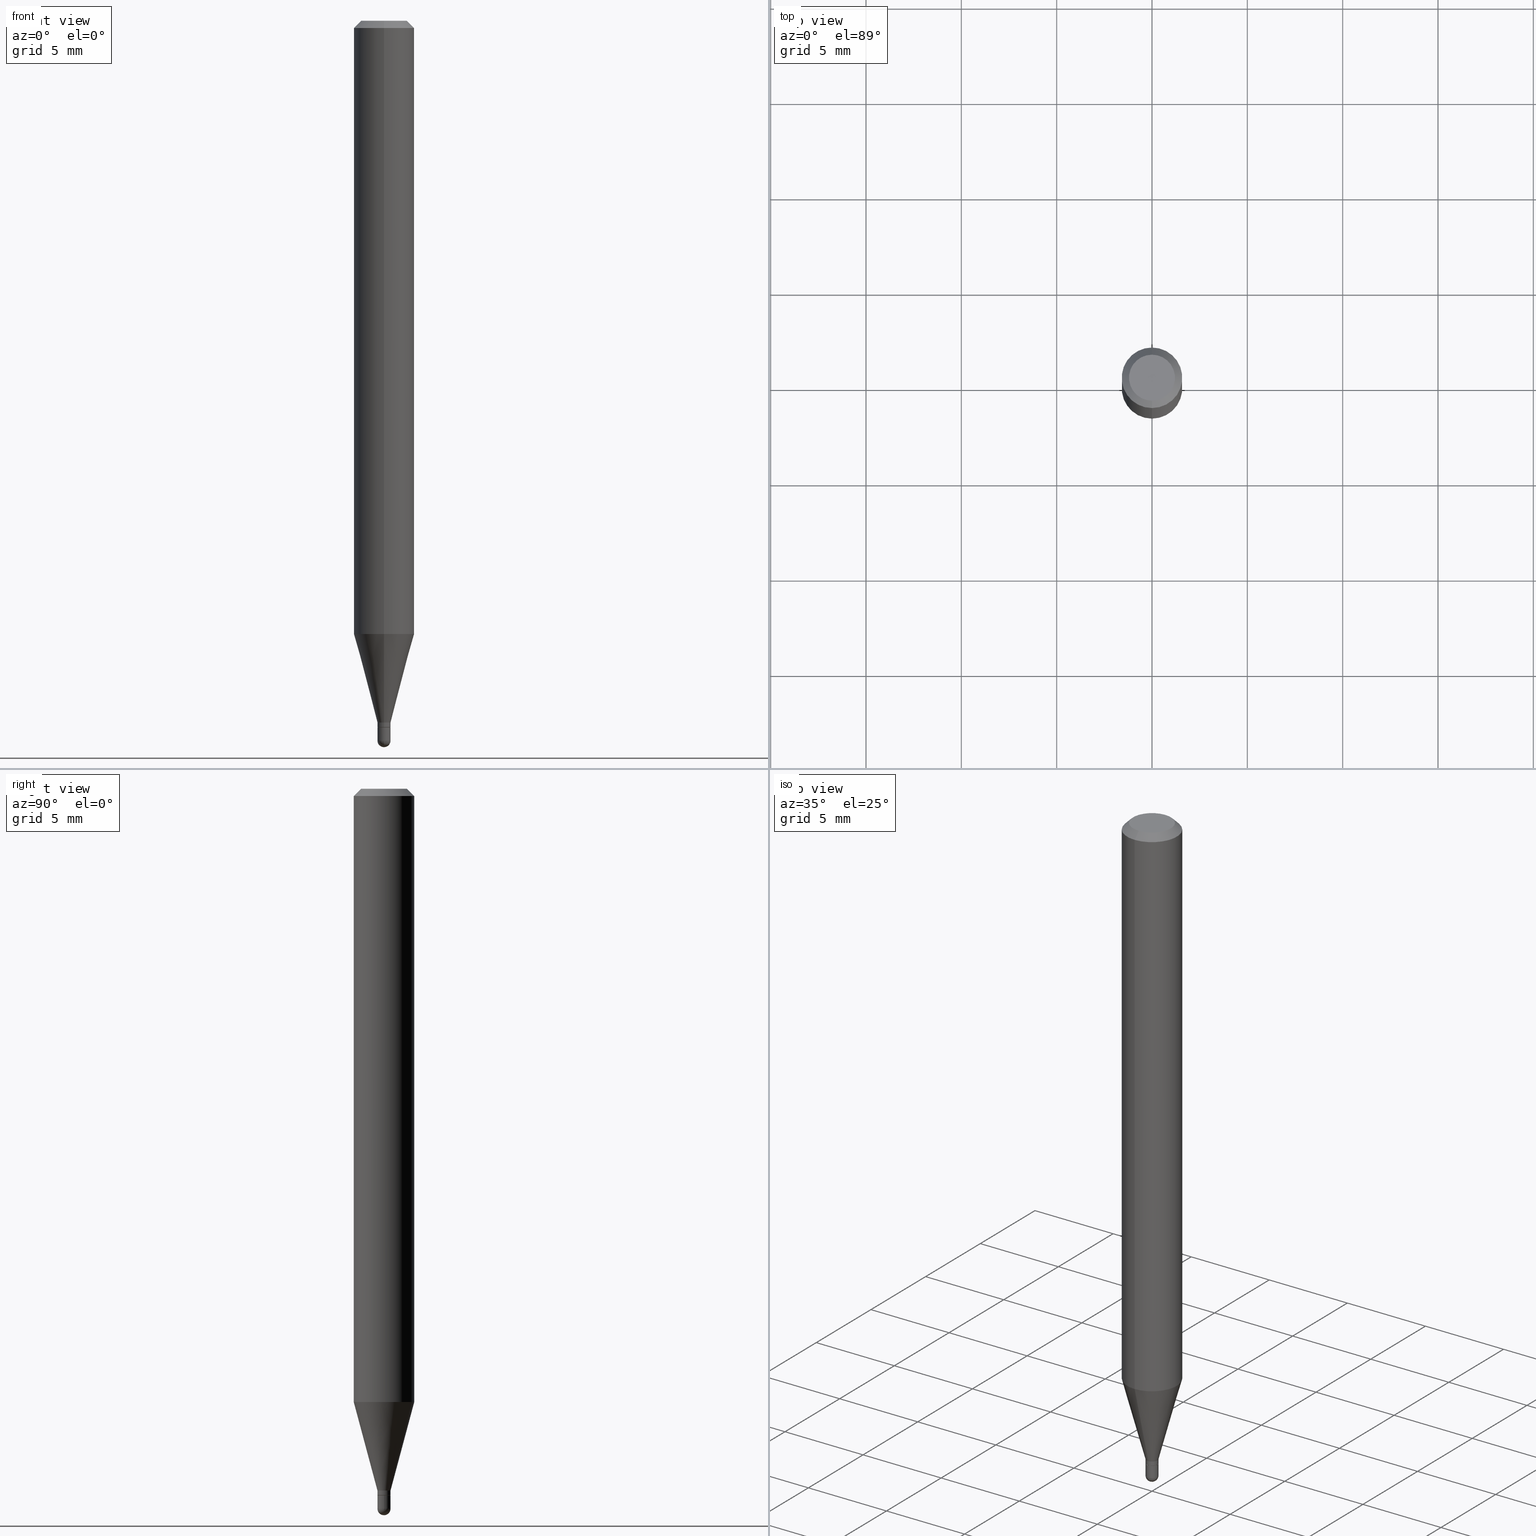
[diagram: canonical four-view strip — front | top / right | iso, engineering-drawing reading convention]
A machine part, canonical four-view strip (front | top / right | iso — engineering-drawing reading convention). The complete STEP part file that produces these views, byte-faithful:
ISO-10303-21;
HEADER;
FILE_DESCRIPTION (( 'STEP AP203' ),
    '1' );
FILE_NAME ('00762.STEP',
    '2024-03-07T18:14:38',
    ( '' ),
    ( '' ),
    'SwSTEP 2.0',
    'SolidWorks 2023',
    '' );
FILE_SCHEMA (( 'CONFIG_CONTROL_DESIGN' ));
ENDSEC;

DATA;
#1 = DIRECTION ( 'NONE',  ( -2.445469396316461036E-29, 3.491480493741500613E-15, 1.000000000000000000 ) ) ;
#2 = CALENDAR_DATE ( 2024, 7, 3 ) ;
#3 = VECTOR ( 'NONE', #293, 39.37007874015748143 ) ;
#4 = LOCAL_TIME ( 13, 14, 38.00000000000000000, #40 ) ;
#5 = DIRECTION ( 'NONE',  ( 1.000000000000000000, -6.982962677686266711E-15, 4.876176775795935232E-29 ) ) ;
#6 = DIRECTION ( 'NONE',  ( -2.445469396316460756E-29, 3.491480493741500613E-15, 1.000000000000000000 ) ) ;
#7 = DIRECTION ( 'NONE',  ( 1.000000000000000000, -6.982962677686297476E-15, 0.000000000000000000 ) ) ;
#8 = CALENDAR_DATE ( 2024, 7, 3 ) ;
#9 = VERTEX_POINT ( 'NONE', #373 ) ;
#10 = CARTESIAN_POINT ( 'NONE',  ( -3.773273898774340269E-16, -0.04749999999999999362, 1.569849637185620268E-16 ) ) ;
#11 = ORIENTED_EDGE ( 'NONE', *, *, #161, .T. ) ;
#12 = FACE_OUTER_BOUND ( 'NONE', #183, .T. ) ;
#13 = MANIFOLD_SOLID_BREP ( 'Body-Move/Copy2[2]', #316 ) ;
#14 = VERTEX_POINT ( 'NONE', #265 ) ;
#15 = DIRECTION ( 'NONE',  ( -2.445469396316461036E-29, 3.491480493741500613E-15, 1.000000000000000000 ) ) ;
#16 = AXIS2_PLACEMENT_3D ( 'NONE', #498, #458, #19 ) ;
#17 = PRODUCT_DEFINITION_SHAPE ( 'NONE', 'NONE',  #154 ) ;
#18 = VERTEX_POINT ( 'NONE', #417 ) ;
#19 = DIRECTION ( 'NONE',  ( -6.982962677686265922E-15, -1.000000000000000000, 0.000000000000000000 ) ) ;
#20 = ORIENTED_EDGE ( 'NONE', *, *, #447, .F. ) ;
#21 = CARTESIAN_POINT ( 'NONE',  ( 3.668204094474693989E-31, -5.237220740612253655E-17, -0.01500000000000000812 ) ) ;
#22 = ORIENTED_EDGE ( 'NONE', *, *, #223, .T. ) ;
#23 = CYLINDRICAL_SURFACE ( 'NONE', #276, 0.01349999999999992525 ) ;
#24 = AXIS2_PLACEMENT_3D ( 'NONE', #268, #188, #345 ) ;
#25 = CARTESIAN_POINT ( 'NONE',  ( 2.700062395888710975E-16, 0.01349999999999486507, -1.449000000000000066 ) ) ;
#26 = FACE_OUTER_BOUND ( 'NONE', #476, .T. ) ;
#27 = ADVANCED_FACE ( 'NONE', ( #377 ), #263, .T. ) ;
#28 = EDGE_CURVE ( 'NONE', #413, #60, #348, .T. ) ;
#29 = DIRECTION ( 'NONE',  ( -2.445468806185136877E-29, 3.491481338843145188E-15, 1.000000000000000000 ) ) ;
#30 = AXIS2_PLACEMENT_3D ( 'NONE', #86, #297, #400 ) ;
#31 = AXIS2_PLACEMENT_3D ( 'NONE', #464, #278, #426 ) ;
#32 = EDGE_CURVE ( 'NONE', #315, #215, #500, .T. ) ;
#33 = CIRCLE ( 'NONE', #269, 0.01300000000000000114 ) ;
#34 = PERSON_AND_ORGANIZATION ( #425, #323 ) ;
#35 = PERSON_AND_ORGANIZATION ( #425, #323 ) ;
#36 = CARTESIAN_POINT ( 'NONE',  ( 0.000000000000000000, 0.000000000000000000, 0.000000000000000000 ) ) ;
#37 = APPROVAL ( #168, 'UNSPECIFIED' ) ;
#38 = FACE_OUTER_BOUND ( 'NONE', #502, .T. ) ;
#39 = DIRECTION ( 'NONE',  ( -2.445469396316461036E-29, 3.491480493741500613E-15, 1.000000000000000000 ) ) ;
#40 = COORDINATED_UNIVERSAL_TIME_OFFSET ( 5, 0, .BEHIND. ) ;
#41 = AXIS2_PLACEMENT_3D ( 'NONE', #267, #224, #67 ) ;
#42 = AXIS2_PLACEMENT_3D ( 'NONE', #445, #428, #211 ) ;
#43 = VERTEX_POINT ( 'NONE', #286 ) ;
#44 = LINE ( 'NONE', #160, #441 ) ;
#45 = EDGE_CURVE ( 'NONE', #337, #450, #437, .T. ) ;
#46 = PERSON_AND_ORGANIZATION ( #425, #323 ) ;
#47 = ORIENTED_EDGE ( 'NONE', *, *, #223, .F. ) ;
#48 = CARTESIAN_POINT ( 'NONE',  ( 3.567938988224114792E-29, -5.094071273372150151E-15, -1.459000000000000297 ) ) ;
#49 = DIRECTION ( 'NONE',  ( -6.982962677686265922E-15, -1.000000000000000000, 0.000000000000000000 ) ) ;
#50 = DIRECTION ( 'NONE',  ( -2.445469396316461036E-29, 3.491480493741500613E-15, 1.000000000000000000 ) ) ;
#51 = ORIENTED_EDGE ( 'NONE', *, *, #233, .F. ) ;
#52 = DIRECTION ( 'NONE',  ( -4.851104656540964275E-15, -0.7071067811865500152, -0.7071067811865450192 ) ) ;
#53 = DIRECTION ( 'NONE',  ( -6.982962677686266711E-15, -1.000000000000000000, 3.491480493741501007E-15 ) ) ;
#54 = ORIENTED_EDGE ( 'NONE', *, *, #396, .F. ) ;
#55 = EDGE_CURVE ( 'NONE', #18, #220, #412, .T. ) ;
#56 = ORIENTED_EDGE ( 'NONE', *, *, #408, .F. ) ;
#57 = FACE_OUTER_BOUND ( 'NONE', #99, .T. ) ;
#58 = CIRCLE ( 'NONE', #69, 0.06250000000000000000 ) ;
#59 = PRODUCT ( '00762', '00762', '', ( #117 ) ) ;
#60 = VERTEX_POINT ( 'NONE', #495 ) ;
#61 = CARTESIAN_POINT ( 'NONE',  ( 3.635189380394205421E-29, -5.190087010190336792E-15, -1.486500000000000155 ) ) ;
#62 = ORIENTED_EDGE ( 'NONE', *, *, #290, .F. ) ;
#63 = CARTESIAN_POINT ( 'NONE',  ( 3.096280969527570590E-29, -4.420666488213768000E-15, -1.266129510429125693 ) ) ;
#64 = EDGE_CURVE ( 'NONE', #60, #365, #322, .T. ) ;
#65 = ORIENTED_EDGE ( 'NONE', *, *, #125, .T. ) ;
#66 = CARTESIAN_POINT ( 'NONE',  ( -9.426999614872871383E-17, -0.01350000000000506177, -1.458500000000000352 ) ) ;
#67 = DIRECTION ( 'NONE',  ( 6.982962677686265922E-15, 1.000000000000000000, -3.491480493741500613E-15 ) ) ;
#68 = AXIS2_PLACEMENT_3D ( 'NONE', #456, #186, #142 ) ;
#69 = AXIS2_PLACEMENT_3D ( 'NONE', #135, #85, #165 ) ;
#70 = ADVANCED_FACE ( 'NONE', ( #26 ), #157, .F. ) ;
#71 = CARTESIAN_POINT ( 'NONE',  ( -0.01349999999999999985, 9.592326932761352401E-17, -6.640562371844122329E-31 ) ) ;
#72 = VERTEX_POINT ( 'NONE', #336 ) ;
#73 = DESIGN_CONTEXT ( 'detailed design', #504, 'design' ) ;
#74 = DIRECTION ( 'NONE',  ( 1.839019923739603471E-15, 0.2588190451025254024, 0.9659258262890670910 ) ) ;
#75 = EDGE_CURVE ( 'NONE', #337, #43, #33, .T. ) ;
#76 = VECTOR ( 'NONE', #489, 39.37007874015748854 ) ;
#77 = LOCAL_TIME ( 13, 14, 38.00000000000000000, #438 ) ;
#78 = LINE ( 'NONE', #503, #192 ) ;
#79 = COORDINATED_UNIVERSAL_TIME_OFFSET ( 5, 0, .BEHIND. ) ;
#80 = AXIS2_PLACEMENT_3D ( 'NONE', #63, #182, #147 ) ;
#81 = EDGE_CURVE ( 'NONE', #9, #210, #144, .T. ) ;
#82 = COORDINATED_UNIVERSAL_TIME_OFFSET ( 5, 0, .BEHIND. ) ;
#83 = CARTESIAN_POINT ( 'NONE',  ( 3.668204094474693989E-31, -5.237220740612253655E-17, -0.01500000000000000812 ) ) ;
#84 = DATE_AND_TIME ( #2, #250 ) ;
#85 = DIRECTION ( 'NONE',  ( -2.445469396316461036E-29, 3.491480493741500613E-15, 1.000000000000000000 ) ) ;
#86 = CARTESIAN_POINT ( 'NONE',  ( 3.566717114527558549E-29, -5.092324300121979884E-15, -1.458500000000000352 ) ) ;
#87 = EDGE_LOOP ( 'NONE', ( #138, #109, #369, #409 ) ) ;
#88 = DIRECTION ( 'NONE',  ( -2.445468806185136597E-29, 3.491481338843145583E-15, 1.000000000000000000 ) ) ;
#89 = ADVANCED_FACE ( 'NONE', ( #442 ), #190, .T. ) ;
#90 = CARTESIAN_POINT ( 'NONE',  ( 3.635189380394205421E-29, -5.190087010190336792E-15, -1.486500000000000155 ) ) ;
#91 = AXIS2_PLACEMENT_3D ( 'NONE', #21, #130, #204 ) ;
#92 = ORIENTED_EDGE ( 'NONE', *, *, #470, .F. ) ;
#93 = PLANE ( 'NONE',  #153 ) ;
#94 = CARTESIAN_POINT ( 'NONE',  ( 3.634034905903813331E-29, -5.191740283369184870E-15, -1.486500000000000155 ) ) ;
#95 = ORIENTED_EDGE ( 'NONE', *, *, #447, .T. ) ;
#96 = ORIENTED_EDGE ( 'NONE', *, *, #490, .F. ) ;
#97 = DIRECTION ( 'NONE',  ( -2.445468806185136597E-29, 3.491481338843145583E-15, 1.000000000000000000 ) ) ;
#98 = DIRECTION ( 'NONE',  ( -2.445469396316461036E-29, 3.491480493741500613E-15, 1.000000000000000000 ) ) ;
#99 = EDGE_LOOP ( 'NONE', ( #11, #398 ) ) ;
#100 = CARTESIAN_POINT ( 'NONE',  ( 3.543485155262552172E-29, -5.059155235431435940E-15, -1.449000000000000066 ) ) ;
#101 = CC_DESIGN_PERSON_AND_ORGANIZATION_ASSIGNMENT ( #46, #234, ( #249 ) ) ;
#102 = ORIENTED_EDGE ( 'NONE', *, *, #380, .F. ) ;
#103 = CIRCLE ( 'NONE', #482, 0.04749999999999999362 ) ;
#104 = AXIS2_PLACEMENT_3D ( 'NONE', #285, #88, #208 ) ;
#105 = DIRECTION ( 'NONE',  ( -2.445469396316461036E-29, 3.491480493741500613E-15, 1.000000000000000000 ) ) ;
#106 = ORIENTED_EDGE ( 'NONE', *, *, #64, .F. ) ;
#107 =( CONVERSION_BASED_UNIT ( 'INCH', #342 ) LENGTH_UNIT ( ) NAMED_UNIT ( #478 ) );
#108 = DIRECTION ( 'NONE',  ( -2.445468806185136597E-29, 3.491481338843145583E-15, 1.000000000000000000 ) ) ;
#109 = ORIENTED_EDGE ( 'NONE', *, *, #408, .T. ) ;
#110 = ORIENTED_EDGE ( 'NONE', *, *, #203, .F. ) ;
#111 = ADVANCED_FACE ( 'NONE', ( #200 ), #247, .T. ) ;
#112 = DIRECTION ( 'NONE',  ( -6.982962677686265922E-15, -1.000000000000000000, 0.000000000000000000 ) ) ;
#113 = ORIENTED_EDGE ( 'NONE', *, *, #184, .F. ) ;
#114 = UNCERTAINTY_MEASURE_WITH_UNIT (LENGTH_MEASURE( 1.000000000000000082E-05 ), #107, 'distance_accuracy_value', 'NONE');
#115 = AXIS2_PLACEMENT_3D ( 'NONE', #309, #338, #112 ) ;
#116 = CARTESIAN_POINT ( 'NONE',  ( 3.634034905903813331E-29, -5.191740283369184870E-15, -1.486500000000000155 ) ) ;
#117 = MECHANICAL_CONTEXT ( 'NONE', #222, 'mechanical' ) ;
#118 = ORIENTED_EDGE ( 'NONE', *, *, #481, .T. ) ;
#119 = AXIS2_PLACEMENT_3D ( 'NONE', #366, #15, #216 ) ;
#120 = VECTOR ( 'NONE', #149, 39.37007874015748143 ) ;
#121 = EDGE_CURVE ( 'NONE', #221, #450, #465, .T. ) ;
#122 = CARTESIAN_POINT ( 'NONE',  ( 9.426999614880026598E-17, 0.01349999999999490496, -1.459000000000000297 ) ) ;
#123 = LINE ( 'NONE', #173, #429 ) ;
#124 = CARTESIAN_POINT ( 'NONE',  ( 3.567939849225717163E-29, -5.094070040368850410E-15, -1.459000000000000297 ) ) ;
#125 = EDGE_CURVE ( 'NONE', #43, #221, #44, .T. ) ;
#126 = VERTEX_POINT ( 'NONE', #10 ) ;
#127 = DIRECTION ( 'NONE',  ( -2.445469396316461036E-29, 3.491480493741500613E-15, 1.000000000000000000 ) ) ;
#128 = EDGE_LOOP ( 'NONE', ( #486, #164, #264, #444 ) ) ;
#129 = DIRECTION ( 'NONE',  ( -2.445469396316461036E-29, 3.491480493741500613E-15, 1.000000000000000000 ) ) ;
#130 = DIRECTION ( 'NONE',  ( 2.445469396316461036E-29, -3.491480493741500613E-15, -1.000000000000000000 ) ) ;
#131 = APPROVAL_ROLE ( '' ) ;
#132 = AXIS2_PLACEMENT_3D ( 'NONE', #350, #6, #174 ) ;
#133 = CC_DESIGN_APPROVAL ( #140, ( #154 ) ) ;
#134 = ORIENTED_EDGE ( 'NONE', *, *, #319, .F. ) ;
#135 = CARTESIAN_POINT ( 'NONE',  ( 3.668204094474693989E-31, -5.237220740612253655E-17, -0.01500000000000000812 ) ) ;
#136 = ORIENTED_EDGE ( 'NONE', *, *, #28, .F. ) ;
#137 =( NAMED_UNIT ( * ) PLANE_ANGLE_UNIT ( ) SI_UNIT ( $, .RADIAN. ) );
#138 = ORIENTED_EDGE ( 'NONE', *, *, #121, .T. ) ;
#139 = FACE_OUTER_BOUND ( 'NONE', #284, .T. ) ;
#140 = APPROVAL ( #356, 'UNSPECIFIED' ) ;
#141 = ORIENTED_EDGE ( 'NONE', *, *, #470, .T. ) ;
#142 = DIRECTION ( 'NONE',  ( 1.000000000000000000, -6.982962677686297476E-15, 0.000000000000000000 ) ) ;
#143 = VERTEX_POINT ( 'NONE', #259 ) ;
#144 = CIRCLE ( 'NONE', #506, 0.06250000000000000000 ) ;
#145 = CONICAL_SURFACE ( 'NONE', #115, 0.01349999999999992352, 0.2617993877991507401 ) ;
#146 = EDGE_CURVE ( 'NONE', #126, #14, #103, .T. ) ;
#147 = DIRECTION ( 'NONE',  ( -6.982962677686265922E-15, -1.000000000000000000, 4.370956789862821150E-15 ) ) ;
#148 = VERTEX_POINT ( 'NONE', #291 ) ;
#149 = DIRECTION ( 'NONE',  ( -2.445469396316461036E-29, 3.491480493741500613E-15, 1.000000000000000000 ) ) ;
#150 = EDGE_CURVE ( 'NONE', #72, #148, #226, .T. ) ;
#151 = AXIS2_PLACEMENT_3D ( 'NONE', #453, #108, #343 ) ;
#152 = CARTESIAN_POINT ( 'NONE',  ( -0.01349999999999999985, -5.046155872453629466E-15, -1.486500000000000155 ) ) ;
#153 = AXIS2_PLACEMENT_3D ( 'NONE', #122, #246, #289 ) ;
#154 = PRODUCT_DEFINITION ( 'UNKNOWN', '', #249, #73 ) ;
#155 = CALENDAR_DATE ( 2024, 7, 3 ) ;
#156 = LINE ( 'NONE', #321, #281 ) ;
#157 = PLANE ( 'NONE',  #132 ) ;
#158 = SHAPE_DEFINITION_REPRESENTATION ( #17, #388 ) ;
#159 = CYLINDRICAL_SURFACE ( 'NONE', #472, 0.01349999999999999985 ) ;
#160 = CARTESIAN_POINT ( 'NONE',  ( -9.077851480988578065E-17, -0.01300000000000509429, -1.459000000000000297 ) ) ;
#161 = EDGE_CURVE ( 'NONE', #14, #126, #459, .T. ) ;
#162 = CIRCLE ( 'NONE', #80, 0.06250000000000000000 ) ;
#163 = CONICAL_SURFACE ( 'NONE', #317, 0.01349999999999992352, 0.2617993877991507401 ) ;
#164 = ORIENTED_EDGE ( 'NONE', *, *, #319, .T. ) ;
#165 = DIRECTION ( 'NONE',  ( -6.982962677686265922E-15, -1.000000000000000000, 3.483106191921935554E-15 ) ) ;
#166 = ORIENTED_EDGE ( 'NONE', *, *, #45, .T. ) ;
#167 = DIRECTION ( 'NONE',  ( -6.982962677686265922E-15, -1.000000000000000000, 3.483106191921935554E-15 ) ) ;
#168 = APPROVAL_STATUS ( 'not_yet_approved' ) ;
#169 = ORIENTED_EDGE ( 'NONE', *, *, #75, .F. ) ;
#170 = DIRECTION ( 'NONE',  ( -2.445469396316461036E-29, 3.491480493741500613E-15, 1.000000000000000000 ) ) ;
#171 = DATE_AND_TIME ( #358, #77 ) ;
#172 = ORIENTED_EDGE ( 'NONE', *, *, #184, .T. ) ;
#173 = CARTESIAN_POINT ( 'NONE',  ( 4.364351673553919652E-16, 0.06249999999999995143, -0.01500000000000022669 ) ) ;
#174 = DIRECTION ( 'NONE',  ( -6.982962677686265922E-15, -1.000000000000000000, 3.491480493741500613E-15 ) ) ;
#175 = AXIS2_PLACEMENT_3D ( 'NONE', #94, #254, #368 ) ;
#176 = AXIS2_PLACEMENT_3D ( 'NONE', #242, #129, #354 ) ;
#177 = ORIENTED_EDGE ( 'NONE', *, *, #75, .T. ) ;
#178 = CARTESIAN_POINT ( 'NONE',  ( 3.634034905903813331E-29, -5.191740283369184870E-15, -1.486500000000000155 ) ) ;
#179 = ORIENTED_EDGE ( 'NONE', *, *, #32, .T. ) ;
#180 = CARTESIAN_POINT ( 'NONE',  ( 4.440892098500625669E-16, 0.06250000000000000000, -2.182175308588437883E-16 ) ) ;
#181 = EDGE_LOOP ( 'NONE', ( #497, #177, #65, #102 ) ) ;
#182 = DIRECTION ( 'NONE',  ( -2.445469396316461036E-29, 3.491480493741500613E-15, 1.000000000000000000 ) ) ;
#183 = EDGE_LOOP ( 'NONE', ( #92, #474, #95, #179 ) ) ;
#184 = EDGE_CURVE ( 'NONE', #72, #60, #275, .T. ) ;
#185 = AXIS2_PLACEMENT_3D ( 'NONE', #431, #331, #475 ) ;
#186 = DIRECTION ( 'NONE',  ( -2.445468806185136597E-29, 3.491481338843145583E-15, 1.000000000000000000 ) ) ;
#187 = ADVANCED_FACE ( 'NONE', ( #303 ), #411, .T. ) ;
#188 = DIRECTION ( 'NONE',  ( -2.445468806185136597E-29, 3.491481338843145583E-15, 1.000000000000000000 ) ) ;
#189 = DIRECTION ( 'NONE',  ( -2.445469396316461036E-29, 3.491480493741500613E-15, 1.000000000000000000 ) ) ;
#190 = CONICAL_SURFACE ( 'NONE', #424, 0.01300000000000000114, 0.7853981633974739252 ) ;
#191 = AXIS2_PLACEMENT_3D ( 'NONE', #48, #512, #393 ) ;
#192 = VECTOR ( 'NONE', #74, 39.37007874015748143 ) ;
#193 = APPROVAL ( #471, 'UNSPECIFIED' ) ;
#194 = PERSON_AND_ORGANIZATION ( #425, #323 ) ;
#195 = EDGE_CURVE ( 'NONE', #210, #9, #162, .T. ) ;
#196 = SECURITY_CLASSIFICATION ( '', '', #511 ) ;
#197 = APPROVAL_ROLE ( '' ) ;
#198 = CALENDAR_DATE ( 2024, 7, 3 ) ;
#199 = DIRECTION ( 'NONE',  ( -2.445469396316461036E-29, 3.491480493741500613E-15, 1.000000000000000000 ) ) ;
#200 = FACE_OUTER_BOUND ( 'NONE', #87, .T. ) ;
#201 = CARTESIAN_POINT ( 'NONE',  ( -4.287811248607203282E-16, -0.06250000000000005551, -0.01499999999999979128 ) ) ;
#202 = DIRECTION ( 'NONE',  ( -6.982962677686265922E-15, -1.000000000000000000, 4.370956789862821150E-15 ) ) ;
#203 = EDGE_CURVE ( 'NONE', #18, #210, #225, .T. ) ;
#204 = DIRECTION ( 'NONE',  ( 6.982962677686265922E-15, 1.000000000000000000, -3.483106191921935554E-15 ) ) ;
#205 = VECTOR ( 'NONE', #399, 39.37007874015748143 ) ;
#206 = PERSON_AND_ORGANIZATION_ROLE ( 'creator' ) ;
#207 = ORIENTED_EDGE ( 'NONE', *, *, #195, .T. ) ;
#208 = DIRECTION ( 'NONE',  ( 1.000000000000000000, -6.982962677686297476E-15, 0.000000000000000000 ) ) ;
#209 = DATE_TIME_ROLE ( 'classification_date' ) ;
#210 = VERTEX_POINT ( 'NONE', #374 ) ;
#211 = DIRECTION ( 'NONE',  ( 6.982962677686265922E-15, 1.000000000000000000, 0.000000000000000000 ) ) ;
#212 = CARTESIAN_POINT ( 'NONE',  ( 2.166773857024105431E-46, -3.093577317934958316E-32, -8.860359734159231081E-18 ) ) ;
#213 = ADVANCED_FACE ( 'NONE', ( #57 ), #423, .F. ) ;
#214 = EDGE_CURVE ( 'NONE', #365, #143, #340, .T. ) ;
#215 = VERTEX_POINT ( 'NONE', #219 ) ;
#216 = DIRECTION ( 'NONE',  ( -6.982962677686265922E-15, -1.000000000000000000, 3.491480493741500613E-15 ) ) ;
#217 = CIRCLE ( 'NONE', #501, 0.01300000000000000114 ) ;
#218 = ORIENTED_EDGE ( 'NONE', *, *, #233, .T. ) ;
#219 = CARTESIAN_POINT ( 'NONE',  ( -4.364351673553912750E-16, -0.06250000000000005551, -0.01499999999999979128 ) ) ;
#220 = VERTEX_POINT ( 'NONE', #25 ) ;
#221 = VERTEX_POINT ( 'NONE', #66 ) ;
#222 = APPLICATION_CONTEXT ( 'configuration controlled 3d designs of mechanical parts and assemblies' ) ;
#223 = EDGE_CURVE ( 'NONE', #372, #143, #292, .T. ) ;
#224 = DIRECTION ( 'NONE',  ( 2.445469396316460756E-29, -3.491480493741500613E-15, -1.000000000000000000 ) ) ;
#225 = LINE ( 'NONE', #271, #76 ) ;
#226 = CIRCLE ( 'NONE', #175, 0.01350000000000000332 ) ;
#227 = AXIS2_PLACEMENT_3D ( 'NONE', #116, #273, #232 ) ;
#228 = DIRECTION ( 'NONE',  ( -6.982962677686265922E-15, -1.000000000000000000, 3.491480493741500613E-15 ) ) ;
#229 = APPLICATION_PROTOCOL_DEFINITION ( 'international standard', 'config_control_design', 1994, #222 ) ;
#230 = ORIENTED_EDGE ( 'NONE', *, *, #355, .T. ) ;
#231 = CC_DESIGN_PERSON_AND_ORGANIZATION_ASSIGNMENT ( #194, #392, ( #59 ) ) ;
#232 = DIRECTION ( 'NONE',  ( 6.982962677686265922E-15, 1.000000000000000000, 0.000000000000000000 ) ) ;
#233 = EDGE_CURVE ( 'NONE', #210, #215, #382, .T. ) ;
#234 = PERSON_AND_ORGANIZATION_ROLE ( 'design_supplier' ) ;
#235 = FACE_OUTER_BOUND ( 'NONE', #300, .T. ) ;
#236 = AXIS2_PLACEMENT_3D ( 'NONE', #178, #487, #280 ) ;
#237 = CONICAL_SURFACE ( 'NONE', #16, 0.01300000000000000114, 0.7853981633974739252 ) ;
#238 = ADVANCED_FACE ( 'NONE', ( #266 ), #237, .T. ) ;
#239 = PERSON_AND_ORGANIZATION_ROLE ( 'creator' ) ;
#240 = DIRECTION ( 'NONE',  ( 6.982962677686265922E-15, 1.000000000000000000, -3.483106191921935554E-15 ) ) ;
#241 = CARTESIAN_POINT ( 'NONE',  ( 3.096280969527570590E-29, -4.420666488213768000E-15, -1.266129510429125693 ) ) ;
#242 = CARTESIAN_POINT ( 'NONE',  ( 3.566717114527558549E-29, -5.092324300121979884E-15, -1.458500000000000352 ) ) ;
#243 = CC_DESIGN_PERSON_AND_ORGANIZATION_ASSIGNMENT ( #34, #239, ( #249 ) ) ;
#244 = PERSON_AND_ORGANIZATION_ROLE ( 'classification_officer' ) ;
#245 = ORIENTED_EDGE ( 'NONE', *, *, #490, .T. ) ;
#246 = DIRECTION ( 'NONE',  ( 2.438088387897960049E-29, -3.491481338843145188E-15, -1.000000000000000000 ) ) ;
#247 = CYLINDRICAL_SURFACE ( 'NONE', #119, 0.01349999999999992525 ) ;
#248 = VECTOR ( 'NONE', #492, 39.37007874015748143 ) ;
#249 = PRODUCT_DEFINITION_FORMATION_WITH_SPECIFIED_SOURCE ( 'ANY', '', #59, .NOT_KNOWN. ) ;
#250 = LOCAL_TIME ( 13, 14, 38.00000000000000000, #430 ) ;
#251 = APPLICATION_PROTOCOL_DEFINITION ( 'international standard', 'config_control_design', 1994, #504 ) ;
#252 = ORIENTED_EDGE ( 'NONE', *, *, #290, .T. ) ;
#253 = CARTESIAN_POINT ( 'NONE',  ( 3.567939849225717163E-29, -5.094070040368850410E-15, -1.459000000000000297 ) ) ;
#254 = DIRECTION ( 'NONE',  ( -1.000000000000000000, 7.105427357601001070E-15, -4.926315508542082329E-29 ) ) ;
#255 = ADVANCED_FACE ( 'NONE', ( #383 ), #23, .T. ) ;
#256 = EDGE_LOOP ( 'NONE', ( #62, #339, #218, #327 ) ) ;
#257 = ORIENTED_EDGE ( 'NONE', *, *, #314, .F. ) ;
#258 = FACE_OUTER_BOUND ( 'NONE', #256, .T. ) ;
#259 = CARTESIAN_POINT ( 'NONE',  ( -0.01349999999999999985, -5.046155872453629466E-15, -1.459000000000000297 ) ) ;
#260 = EDGE_LOOP ( 'NONE', ( #262, #141, #288, #20 ) ) ;
#261 = DIRECTION ( 'NONE',  ( -2.445469396316461036E-29, 3.491480493741500613E-15, 1.000000000000000000 ) ) ;
#262 = ORIENTED_EDGE ( 'NONE', *, *, #146, .F. ) ;
#263 = CONICAL_SURFACE ( 'NONE', #91, 0.06250000000000000000, 0.7853981633974483900 ) ;
#264 = ORIENTED_EDGE ( 'NONE', *, *, #203, .T. ) ;
#265 = CARTESIAN_POINT ( 'NONE',  ( 3.840629472727447874E-16, 0.04749999999999999362, -1.747056831868805136E-16 ) ) ;
#266 = FACE_OUTER_BOUND ( 'NONE', #181, .T. ) ;
#267 = CARTESIAN_POINT ( 'NONE',  ( 3.316907271900976096E-16, 0.04749999999999999362, -1.702755033198008919E-16 ) ) ;
#268 = CARTESIAN_POINT ( 'NONE',  ( 3.635189380394205421E-29, -5.190087010190336792E-15, -1.486500000000000155 ) ) ;
#269 = AXIS2_PLACEMENT_3D ( 'NONE', #436, #483, #432 ) ;
#270 = APPROVAL_PERSON_ORGANIZATION ( #35, #37, #197 ) ;
#271 = CARTESIAN_POINT ( 'NONE',  ( -9.426999614872861522E-17, -0.01350000000000498197, -1.449000000000000066 ) ) ;
#272 = CC_DESIGN_DATE_AND_TIME_ASSIGNMENT ( #390, #209, ( #196 ) ) ;
#273 = DIRECTION ( 'NONE',  ( -1.000000000000000000, 6.982962677686265922E-15, -4.883557194083112901E-29 ) ) ;
#274 = ADVANCED_FACE ( 'NONE', ( #379 ), #418, .T. ) ;
#275 = CIRCLE ( 'NONE', #236, 0.01350000000000000332 ) ;
#276 = AXIS2_PLACEMENT_3D ( 'NONE', #308, #449, #228 ) ;
#277 = CC_DESIGN_SECURITY_CLASSIFICATION ( #196, ( #249 ) ) ;
#278 = DIRECTION ( 'NONE',  ( 0.000000000000000000, 0.000000000000000000, 1.000000000000000000 ) ) ;
#279 = SPHERICAL_SURFACE ( 'NONE', #42, 0.01350000000000000332 ) ;
#280 = DIRECTION ( 'NONE',  ( 6.982962677686266711E-15, 1.000000000000000000, 0.000000000000000000 ) ) ;
#281 = VECTOR ( 'NONE', #127, 39.37007874015748143 ) ;
#282 = PRODUCT_RELATED_PRODUCT_CATEGORY ( 'detail', '', ( #59 ) ) ;
#283 = CARTESIAN_POINT ( 'NONE',  ( 0.01349999999999999985, -5.188341269520915288E-15, -1.459000000000000297 ) ) ;
#284 = EDGE_LOOP ( 'NONE', ( #479, #230, #455, #110 ) ) ;
#285 = CARTESIAN_POINT ( 'NONE',  ( 3.635189380394205421E-29, -5.190087010190336792E-15, -1.486500000000000155 ) ) ;
#286 = CARTESIAN_POINT ( 'NONE',  ( -9.077851480988578065E-17, -0.01300000000000509429, -1.459000000000000297 ) ) ;
#287 = PERSON_AND_ORGANIZATION ( #425, #323 ) ;
#288 = ORIENTED_EDGE ( 'NONE', *, *, #485, .T. ) ;
#289 = DIRECTION ( 'NONE',  ( -1.000000000000000000, 6.982962677686265922E-15, -4.876176775795935793E-29 ) ) ;
#290 = EDGE_CURVE ( 'NONE', #9, #315, #496, .T. ) ;
#291 = CARTESIAN_POINT ( 'NONE',  ( -9.592326932757717478E-17, -0.01350000000000519187, -1.486500000000000155 ) ) ;
#292 = CIRCLE ( 'NONE', #68, 0.01349999999999999985 ) ;
#293 = DIRECTION ( 'NONE',  ( 5.024295867788190974E-15, 0.7071067811865681119, 0.7071067811865270336 ) ) ;
#294 = VECTOR ( 'NONE', #52, 39.37007874015748143 ) ;
#295 = ORIENTED_EDGE ( 'NONE', *, *, #64, .T. ) ;
#296 = LINE ( 'NONE', #326, #205 ) ;
#297 = DIRECTION ( 'NONE',  ( -2.445469396316461036E-29, 3.491480493741500613E-15, 1.000000000000000000 ) ) ;
#298 = ORIENTED_EDGE ( 'NONE', *, *, #214, .F. ) ;
#299 = LINE ( 'NONE', #310, #460 ) ;
#300 = EDGE_LOOP ( 'NONE', ( #330, #172, #136, #96 ) ) ;
#301 = ADVANCED_FACE ( 'NONE', ( #139 ), #145, .T. ) ;
#302 = ORIENTED_EDGE ( 'NONE', *, *, #150, .T. ) ;
#303 = FACE_OUTER_BOUND ( 'NONE', #421, .T. ) ;
#304 = AXIS2_PLACEMENT_3D ( 'NONE', #443, #50, #341 ) ;
#305 = LOCAL_TIME ( 13, 14, 38.00000000000000000, #82 ) ;
#306 = ORIENTED_EDGE ( 'NONE', *, *, #314, .T. ) ;
#307 =( LENGTH_UNIT ( ) NAMED_UNIT ( * ) SI_UNIT ( $, .METRE. ) );
#308 = CARTESIAN_POINT ( 'NONE',  ( 0.000000000000000000, 0.000000000000000000, 0.000000000000000000 ) ) ;
#309 = CARTESIAN_POINT ( 'NONE',  ( 3.543485155262552172E-29, -5.059155235431435940E-15, -1.449000000000000066 ) ) ;
#310 = CARTESIAN_POINT ( 'NONE',  ( 0.01349999999999999985, -9.426999614876459468E-17, 6.582838647324512550E-31 ) ) ;
#311 = EDGE_CURVE ( 'NONE', #365, #148, #391, .T. ) ;
#312 = AXIS2_PLACEMENT_3D ( 'NONE', #100, #261, #505 ) ;
#313 = ORIENTED_EDGE ( 'NONE', *, *, #311, .T. ) ;
#314 = EDGE_CURVE ( 'NONE', #413, #372, #299, .T. ) ;
#315 = VERTEX_POINT ( 'NONE', #346 ) ;
#316 = CLOSED_SHELL ( 'NONE', ( #111, #89, #27, #187, #301, #427, #467, #386, #213, #70, #238, #255 ) ) ;
#317 = AXIS2_PLACEMENT_3D ( 'NONE', #477, #199, #407 ) ;
#318 = CARTESIAN_POINT ( 'NONE',  ( 9.592326932764833250E-17, 0.01349999999999478874, -1.458500000000000352 ) ) ;
#319 = EDGE_CURVE ( 'NONE', #220, #18, #385, .T. ) ;
#320 = DATE_AND_TIME ( #155, #305 ) ;
#321 = CARTESIAN_POINT ( 'NONE',  ( -9.426999614876406466E-17, -0.01349999999999992525, 4.713498666550999632E-17 ) ) ;
#322 = CIRCLE ( 'NONE', #493, 0.01349999999999999985 ) ;
#323 = ORGANIZATION ( 'UNSPECIFIED', 'UNSPECIFIED', '' ) ;
#324 = PERSON_AND_ORGANIZATION ( #425, #323 ) ;
#325 = ORIENTED_EDGE ( 'NONE', *, *, #396, .T. ) ;
#326 = CARTESIAN_POINT ( 'NONE',  ( 9.592326932761298167E-17, 0.01349999999999992525, -4.713498666550999632E-17 ) ) ;
#327 = ORIENTED_EDGE ( 'NONE', *, *, #32, .F. ) ;
#328 = DIRECTION ( 'NONE',  ( -6.982962677686266711E-15, -1.000000000000000000, 3.491480493741501007E-15 ) ) ;
#329 = APPROVAL_DATE_TIME ( #84, #37 ) ;
#330 = ORIENTED_EDGE ( 'NONE', *, *, #150, .F. ) ;
#331 = DIRECTION ( 'NONE',  ( -2.445469396316461036E-29, 3.491480493741500613E-15, 1.000000000000000000 ) ) ;
#332 = CARTESIAN_POINT ( 'NONE',  ( 2.166773857024105431E-46, -3.093577317934958316E-32, -8.860359734159231081E-18 ) ) ;
#333 = AXIS2_PLACEMENT_3D ( 'NONE', #90, #363, #7 ) ;
#334 = CARTESIAN_POINT ( 'NONE',  ( 3.668204094474693989E-31, -5.237220740612253655E-17, -0.01500000000000000812 ) ) ;
#335 = ORIENTED_EDGE ( 'NONE', *, *, #121, .F. ) ;
#336 = CARTESIAN_POINT ( 'NONE',  ( 3.667625972032508570E-29, -5.238048644854143005E-15, -1.500000000000000222 ) ) ;
#337 = VERTEX_POINT ( 'NONE', #351 ) ;
#338 = DIRECTION ( 'NONE',  ( -2.445469396316461036E-29, 3.491480493741500613E-15, 1.000000000000000000 ) ) ;
#339 = ORIENTED_EDGE ( 'NONE', *, *, #81, .T. ) ;
#340 = LINE ( 'NONE', #71, #248 ) ;
#341 = DIRECTION ( 'NONE',  ( -6.982962677686265922E-15, -1.000000000000000000, 0.000000000000000000 ) ) ;
#342 = LENGTH_MEASURE_WITH_UNIT ( LENGTH_MEASURE( 0.02539999999999999897 ), #307 );
#343 = DIRECTION ( 'NONE',  ( 1.000000000000000000, -6.982962677686266711E-15, 4.876176775795935232E-29 ) ) ;
#344 = CC_DESIGN_DATE_AND_TIME_ASSIGNMENT ( #320, #352, ( #154 ) ) ;
#345 = DIRECTION ( 'NONE',  ( 1.000000000000000000, -6.982962677686297476E-15, 0.000000000000000000 ) ) ;
#346 = CARTESIAN_POINT ( 'NONE',  ( 4.440892098500936776E-16, 0.06249999999999993755, -0.01500000000000022669 ) ) ;
#347 = ORIENTED_EDGE ( 'NONE', *, *, #446, .T. ) ;
#348 = CIRCLE ( 'NONE', #333, 0.01349999999999999985 ) ;
#349 = AXIS2_PLACEMENT_3D ( 'NONE', #332, #98, #53 ) ;
#350 = CARTESIAN_POINT ( 'NONE',  ( 3.567939849225717163E-29, -5.094070040368850410E-15, -1.459000000000000297 ) ) ;
#351 = CARTESIAN_POINT ( 'NONE',  ( 9.414691248824867210E-17, 0.01299999999999490626, -1.459000000000000297 ) ) ;
#352 = DATE_TIME_ROLE ( 'creation_date' ) ;
#353 = ADVANCED_FACE ( 'NONE', ( #235 ), #461, .T. ) ;
#354 = DIRECTION ( 'NONE',  ( -6.982962677686265922E-15, -1.000000000000000000, 0.000000000000000000 ) ) ;
#355 = EDGE_CURVE ( 'NONE', #220, #9, #78, .T. ) ;
#356 = APPROVAL_STATUS ( 'not_yet_approved' ) ;
#357 = FACE_OUTER_BOUND ( 'NONE', #128, .T. ) ;
#358 = CALENDAR_DATE ( 2024, 7, 3 ) ;
#359 = LINE ( 'NONE', #201, #294 ) ;
#360 = CLOSED_SHELL ( 'NONE', ( #274, #362, #463, #353, #389 ) ) ;
#361 =( GEOMETRIC_REPRESENTATION_CONTEXT ( 3 ) GLOBAL_UNCERTAINTY_ASSIGNED_CONTEXT ( ( #114 ) ) GLOBAL_UNIT_ASSIGNED_CONTEXT ( ( #107, #137, #410 ) ) REPRESENTATION_CONTEXT ( 'NONE', 'WORKASPACE' ) );
#362 = ADVANCED_FACE ( 'NONE', ( #387 ), #279, .T. ) ;
#363 = DIRECTION ( 'NONE',  ( -2.445468806185136597E-29, 3.491481338843145583E-15, 1.000000000000000000 ) ) ;
#364 = PERSON_AND_ORGANIZATION ( #425, #323 ) ;
#365 = VERTEX_POINT ( 'NONE', #152 ) ;
#366 = CARTESIAN_POINT ( 'NONE',  ( 0.000000000000000000, 0.000000000000000000, 0.000000000000000000 ) ) ;
#367 = EDGE_LOOP ( 'NONE', ( #295, #488, #47, #257, #404 ) ) ;
#368 = DIRECTION ( 'NONE',  ( -7.105427357601001070E-15, -1.000000000000000000, 0.000000000000000000 ) ) ;
#369 = ORIENTED_EDGE ( 'NONE', *, *, #55, .F. ) ;
#370 = ORIENTED_EDGE ( 'NONE', *, *, #485, .F. ) ;
#371 = CONICAL_SURFACE ( 'NONE', #507, 0.06250000000000000000, 0.7853981633974483900 ) ;
#372 = VERTEX_POINT ( 'NONE', #283 ) ;
#373 = CARTESIAN_POINT ( 'NONE',  ( 4.440892098500933817E-16, 0.06249999999999557992, -1.266129510429125915 ) ) ;
#374 = CARTESIAN_POINT ( 'NONE',  ( -4.364351673553607559E-16, -0.06250000000000442701, -1.266129510429125471 ) ) ;
#375 = DIRECTION ( 'NONE',  ( 1.000000000000000000, -6.982962677686297476E-15, 0.000000000000000000 ) ) ;
#376 = EDGE_LOOP ( 'NONE', ( #56, #434, #347, #134 ) ) ;
#377 = FACE_OUTER_BOUND ( 'NONE', #260, .T. ) ;
#378 = MANIFOLD_SOLID_BREP ( 'Body-Move/Copy2[1]', #360 ) ;
#379 = FACE_OUTER_BOUND ( 'NONE', #367, .T. ) ;
#380 = EDGE_CURVE ( 'NONE', #450, #221, #414, .T. ) ;
#381 = AXIS2_PLACEMENT_3D ( 'NONE', #334, #405, #167 ) ;
#382 = LINE ( 'NONE', #451, #415 ) ;
#383 = FACE_OUTER_BOUND ( 'NONE', #376, .T. ) ;
#384 = AXIS2_PLACEMENT_3D ( 'NONE', #419, #189, #420 ) ;
#385 = CIRCLE ( 'NONE', #312, 0.01349999999999992352 ) ;
#386 = ADVANCED_FACE ( 'NONE', ( #12 ), #371, .T. ) ;
#387 = FACE_OUTER_BOUND ( 'NONE', #406, .T. ) ;
#388 = ADVANCED_BREP_SHAPE_REPRESENTATION ( '00762', ( #378, #13, #31 ), #361 ) ;
#389 = ADVANCED_FACE ( 'NONE', ( #473 ), #159, .T. ) ;
#390 = DATE_AND_TIME ( #8, #484 ) ;
#391 = CIRCLE ( 'NONE', #24, 0.01349999999999999985 ) ;
#392 = PERSON_AND_ORGANIZATION_ROLE ( 'design_owner' ) ;
#393 = DIRECTION ( 'NONE',  ( 1.000000000000000000, -6.982962677686297476E-15, 0.000000000000000000 ) ) ;
#394 = DIRECTION ( 'NONE',  ( -4.937700262164674260E-15, -0.7071067811865632269, 0.7071067811865319186 ) ) ;
#395 = DIRECTION ( 'NONE',  ( 4.937700262164548042E-15, 0.7071067811865451302, -0.7071067811865499042 ) ) ;
#396 = EDGE_CURVE ( 'NONE', #143, #372, #401, .T. ) ;
#397 = APPROVAL_DATE_TIME ( #468, #140 ) ;
#398 = ORIENTED_EDGE ( 'NONE', *, *, #146, .T. ) ;
#399 = DIRECTION ( 'NONE',  ( -2.445469396316461036E-29, 3.491480493741500613E-15, 1.000000000000000000 ) ) ;
#400 = DIRECTION ( 'NONE',  ( -6.982962677686265922E-15, -1.000000000000000000, 0.000000000000000000 ) ) ;
#401 = CIRCLE ( 'NONE', #191, 0.01349999999999999985 ) ;
#402 = CARTESIAN_POINT ( 'NONE',  ( 9.237055564884869123E-17, 0.01299999999999490626, -1.459000000000000297 ) ) ;
#403 = APPROVAL_DATE_TIME ( #171, #193 ) ;
#404 = ORIENTED_EDGE ( 'NONE', *, *, #28, .T. ) ;
#405 = DIRECTION ( 'NONE',  ( -2.445469396316461036E-29, 3.491480493741500613E-15, 1.000000000000000000 ) ) ;
#406 = EDGE_LOOP ( 'NONE', ( #113, #302, #491, #106 ) ) ;
#407 = DIRECTION ( 'NONE',  ( -6.982962677686265922E-15, -1.000000000000000000, 0.000000000000000000 ) ) ;
#408 = EDGE_CURVE ( 'NONE', #450, #220, #296, .T. ) ;
#409 = ORIENTED_EDGE ( 'NONE', *, *, #446, .F. ) ;
#410 =( NAMED_UNIT ( * ) SI_UNIT ( $, .STERADIAN. ) SOLID_ANGLE_UNIT ( ) );
#411 = CYLINDRICAL_SURFACE ( 'NONE', #384, 0.06250000000000000000 ) ;
#412 = CIRCLE ( 'NONE', #304, 0.01349999999999992352 ) ;
#413 = VERTEX_POINT ( 'NONE', #469 ) ;
#414 = CIRCLE ( 'NONE', #176, 0.01349999999999992525 ) ;
#415 = VECTOR ( 'NONE', #105, 39.37007874015748143 ) ;
#416 = ORIENTED_EDGE ( 'NONE', *, *, #125, .F. ) ;
#417 = CARTESIAN_POINT ( 'NONE',  ( -9.426999614872861522E-17, -0.01350000000000498197, -1.449000000000000066 ) ) ;
#418 = CYLINDRICAL_SURFACE ( 'NONE', #151, 0.01349999999999999985 ) ;
#419 = CARTESIAN_POINT ( 'NONE',  ( 0.000000000000000000, 0.000000000000000000, 0.000000000000000000 ) ) ;
#420 = DIRECTION ( 'NONE',  ( -6.982962677686265922E-15, -1.000000000000000000, 3.491480493741500613E-15 ) ) ;
#421 = EDGE_LOOP ( 'NONE', ( #207, #252, #370, #51 ) ) ;
#422 = APPROVAL_PERSON_ORGANIZATION ( #287, #193, #433 ) ;
#423 = PLANE ( 'NONE',  #41 ) ;
#424 = AXIS2_PLACEMENT_3D ( 'NONE', #124, #1, #49 ) ;
#425 = PERSON ( 'UNSPECIFIED', 'UNSPECIFIED', 'UNSPECIFIED', ('UNSPECIFIED'), ('UNSPECIFIED'), ('UNSPECIFIED') ) ;
#426 = DIRECTION ( 'NONE',  ( 1.000000000000000000, 0.000000000000000000, 0.000000000000000000 ) ) ;
#427 = ADVANCED_FACE ( 'NONE', ( #357 ), #163, .T. ) ;
#428 = DIRECTION ( 'NONE',  ( -1.000000000000000000, 6.982962677686265922E-15, -4.883557194083112901E-29 ) ) ;
#429 = VECTOR ( 'NONE', #395, 39.37007874015748143 ) ;
#430 = COORDINATED_UNIVERSAL_TIME_OFFSET ( 5, 0, .BEHIND. ) ;
#431 = CARTESIAN_POINT ( 'NONE',  ( 0.000000000000000000, 0.000000000000000000, 0.000000000000000000 ) ) ;
#432 = DIRECTION ( 'NONE',  ( -6.982962677686265922E-15, -1.000000000000000000, 0.000000000000000000 ) ) ;
#433 = APPROVAL_ROLE ( '' ) ;
#434 = ORIENTED_EDGE ( 'NONE', *, *, #380, .T. ) ;
#435 = DIRECTION ( 'NONE',  ( -6.982962677686265922E-15, -1.000000000000000000, 0.000000000000000000 ) ) ;
#436 = CARTESIAN_POINT ( 'NONE',  ( 3.567939849225717163E-29, -5.094070040368850410E-15, -1.459000000000000297 ) ) ;
#437 = LINE ( 'NONE', #402, #3 ) ;
#438 = COORDINATED_UNIVERSAL_TIME_OFFSET ( 5, 0, .BEHIND. ) ;
#439 = EDGE_LOOP ( 'NONE', ( #118, #166, #335, #416 ) ) ;
#440 = CYLINDRICAL_SURFACE ( 'NONE', #185, 0.06250000000000000000 ) ;
#441 = VECTOR ( 'NONE', #394, 39.37007874015748143 ) ;
#442 = FACE_OUTER_BOUND ( 'NONE', #439, .T. ) ;
#443 = CARTESIAN_POINT ( 'NONE',  ( 3.543485155262552172E-29, -5.059155235431435940E-15, -1.449000000000000066 ) ) ;
#444 = ORIENTED_EDGE ( 'NONE', *, *, #81, .F. ) ;
#445 = CARTESIAN_POINT ( 'NONE',  ( 3.634034905903813331E-29, -5.191740283369184870E-15, -1.486500000000000155 ) ) ;
#446 = EDGE_CURVE ( 'NONE', #221, #18, #156, .T. ) ;
#447 = EDGE_CURVE ( 'NONE', #14, #315, #123, .T. ) ;
#448 = ORIENTED_EDGE ( 'NONE', *, *, #481, .F. ) ;
#449 = DIRECTION ( 'NONE',  ( -2.445469396316461036E-29, 3.491480493741500613E-15, 1.000000000000000000 ) ) ;
#450 = VERTEX_POINT ( 'NONE', #318 ) ;
#451 = CARTESIAN_POINT ( 'NONE',  ( -4.364351673553916201E-16, -0.06250000000000000000, 2.182175308588437883E-16 ) ) ;
#452 = APPROVAL_PERSON_ORGANIZATION ( #324, #140, #131 ) ;
#453 = CARTESIAN_POINT ( 'NONE',  ( 0.000000000000000000, 0.000000000000000000, 0.000000000000000000 ) ) ;
#454 = DIRECTION ( 'NONE',  ( -2.445468806185136597E-29, 3.491481338843145583E-15, 1.000000000000000000 ) ) ;
#455 = ORIENTED_EDGE ( 'NONE', *, *, #195, .F. ) ;
#456 = CARTESIAN_POINT ( 'NONE',  ( 3.567938988224114792E-29, -5.094071273372150151E-15, -1.459000000000000297 ) ) ;
#457 = CC_DESIGN_PERSON_AND_ORGANIZATION_ASSIGNMENT ( #509, #244, ( #196 ) ) ;
#458 = DIRECTION ( 'NONE',  ( -2.445469396316461036E-29, 3.491480493741500613E-15, 1.000000000000000000 ) ) ;
#459 = CIRCLE ( 'NONE', #349, 0.04749999999999999362 ) ;
#460 = VECTOR ( 'NONE', #29, 39.37007874015748143 ) ;
#461 = SPHERICAL_SURFACE ( 'NONE', #227, 0.01350000000000000332 ) ;
#462 = EDGE_LOOP ( 'NONE', ( #298, #313, #245, #306, #54 ) ) ;
#463 = ADVANCED_FACE ( 'NONE', ( #38 ), #93, .F. ) ;
#464 = CARTESIAN_POINT ( 'NONE',  ( 0.000000000000000000, 0.000000000000000000, 0.000000000000000000 ) ) ;
#465 = CIRCLE ( 'NONE', #30, 0.01349999999999992525 ) ;
#466 = CIRCLE ( 'NONE', #104, 0.01349999999999999985 ) ;
#467 = ADVANCED_FACE ( 'NONE', ( #258 ), #440, .T. ) ;
#468 = DATE_AND_TIME ( #198, #4 ) ;
#469 = CARTESIAN_POINT ( 'NONE',  ( 0.01349999999999999985, -5.236349137930008608E-15, -1.486500000000000155 ) ) ;
#470 = EDGE_CURVE ( 'NONE', #126, #215, #359, .T. ) ;
#471 = APPROVAL_STATUS ( 'not_yet_approved' ) ;
#472 = AXIS2_PLACEMENT_3D ( 'NONE', #36, #97, #5 ) ;
#473 = FACE_OUTER_BOUND ( 'NONE', #462, .T. ) ;
#474 = ORIENTED_EDGE ( 'NONE', *, *, #161, .F. ) ;
#475 = DIRECTION ( 'NONE',  ( -6.982962677686265922E-15, -1.000000000000000000, 3.491480493741500613E-15 ) ) ;
#476 = EDGE_LOOP ( 'NONE', ( #448, #169 ) ) ;
#477 = CARTESIAN_POINT ( 'NONE',  ( 3.543485155262552172E-29, -5.059155235431435940E-15, -1.449000000000000066 ) ) ;
#478 = DIMENSIONAL_EXPONENTS ( 1.000000000000000000, 0.000000000000000000, 0.000000000000000000, 0.000000000000000000, 0.000000000000000000, 0.000000000000000000, 0.000000000000000000 ) ;
#479 = ORIENTED_EDGE ( 'NONE', *, *, #55, .T. ) ;
#480 = DIRECTION ( 'NONE',  ( 2.445469396316461036E-29, -3.491480493741500613E-15, -1.000000000000000000 ) ) ;
#481 = EDGE_CURVE ( 'NONE', #43, #337, #217, .T. ) ;
#482 = AXIS2_PLACEMENT_3D ( 'NONE', #212, #170, #328 ) ;
#483 = DIRECTION ( 'NONE',  ( -2.445469396316461036E-29, 3.491480493741500613E-15, 1.000000000000000000 ) ) ;
#484 = LOCAL_TIME ( 13, 14, 38.00000000000000000, #79 ) ;
#485 = EDGE_CURVE ( 'NONE', #215, #315, #58, .T. ) ;
#486 = ORIENTED_EDGE ( 'NONE', *, *, #355, .F. ) ;
#487 = DIRECTION ( 'NONE',  ( 1.000000000000000000, -6.982962677686265922E-15, 4.883557194083112340E-29 ) ) ;
#488 = ORIENTED_EDGE ( 'NONE', *, *, #214, .T. ) ;
#489 = DIRECTION ( 'NONE',  ( -1.807323732225332900E-15, -0.2588190451025185745, 0.9659258262890687563 ) ) ;
#490 = EDGE_CURVE ( 'NONE', #148, #413, #466, .T. ) ;
#491 = ORIENTED_EDGE ( 'NONE', *, *, #311, .F. ) ;
#492 = DIRECTION ( 'NONE',  ( -2.445468806185136877E-29, 3.491481338843145188E-15, 1.000000000000000000 ) ) ;
#493 = AXIS2_PLACEMENT_3D ( 'NONE', #61, #454, #375 ) ;
#494 = CC_DESIGN_APPROVAL ( #193, ( #249 ) ) ;
#495 = CARTESIAN_POINT ( 'NONE',  ( 9.426999614880094391E-17, 0.01349999999999481129, -1.486500000000000155 ) ) ;
#496 = LINE ( 'NONE', #180, #120 ) ;
#497 = ORIENTED_EDGE ( 'NONE', *, *, #45, .F. ) ;
#498 = CARTESIAN_POINT ( 'NONE',  ( 3.567939849225717163E-29, -5.094070040368850410E-15, -1.459000000000000297 ) ) ;
#499 = CC_DESIGN_PERSON_AND_ORGANIZATION_ASSIGNMENT ( #364, #206, ( #154 ) ) ;
#500 = CIRCLE ( 'NONE', #381, 0.06250000000000000000 ) ;
#501 = AXIS2_PLACEMENT_3D ( 'NONE', #253, #510, #435 ) ;
#502 = EDGE_LOOP ( 'NONE', ( #22, #325 ) ) ;
#503 = CARTESIAN_POINT ( 'NONE',  ( 9.592326932764840645E-17, 0.01349999999999486507, -1.449000000000000066 ) ) ;
#504 = APPLICATION_CONTEXT ( 'configuration controlled 3d designs of mechanical parts and assemblies' ) ;
#505 = DIRECTION ( 'NONE',  ( -6.982962677686265922E-15, -1.000000000000000000, 0.000000000000000000 ) ) ;
#506 = AXIS2_PLACEMENT_3D ( 'NONE', #241, #39, #202 ) ;
#507 = AXIS2_PLACEMENT_3D ( 'NONE', #83, #480, #240 ) ;
#508 = CC_DESIGN_APPROVAL ( #37, ( #196 ) ) ;
#509 = PERSON_AND_ORGANIZATION ( #425, #323 ) ;
#510 = DIRECTION ( 'NONE',  ( -2.445469396316461036E-29, 3.491480493741500613E-15, 1.000000000000000000 ) ) ;
#511 = SECURITY_CLASSIFICATION_LEVEL ( 'unclassified' ) ;
#512 = DIRECTION ( 'NONE',  ( -2.445468806185136597E-29, 3.491481338843145583E-15, 1.000000000000000000 ) ) ;
ENDSEC;
END-ISO-10303-21;
